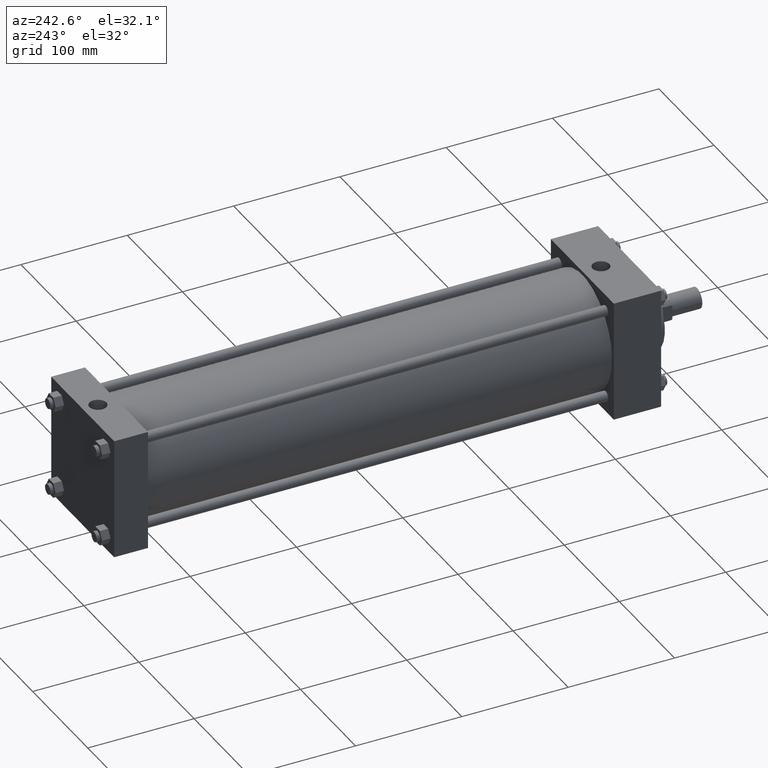
[diagram: clean part render]
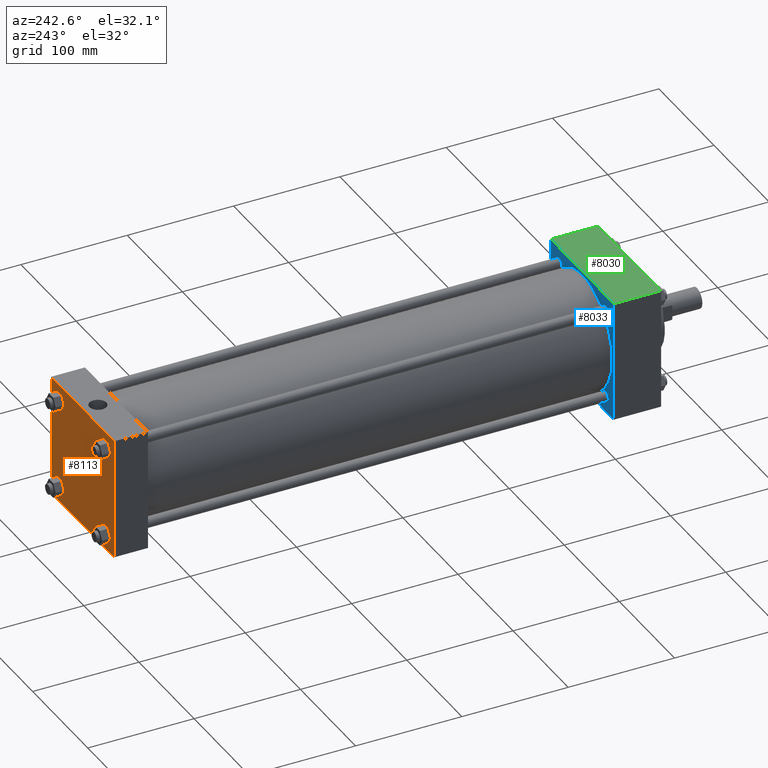
[diagram: same view with three faces highlighted in distinct colors, each labeled with its STEP entity id]
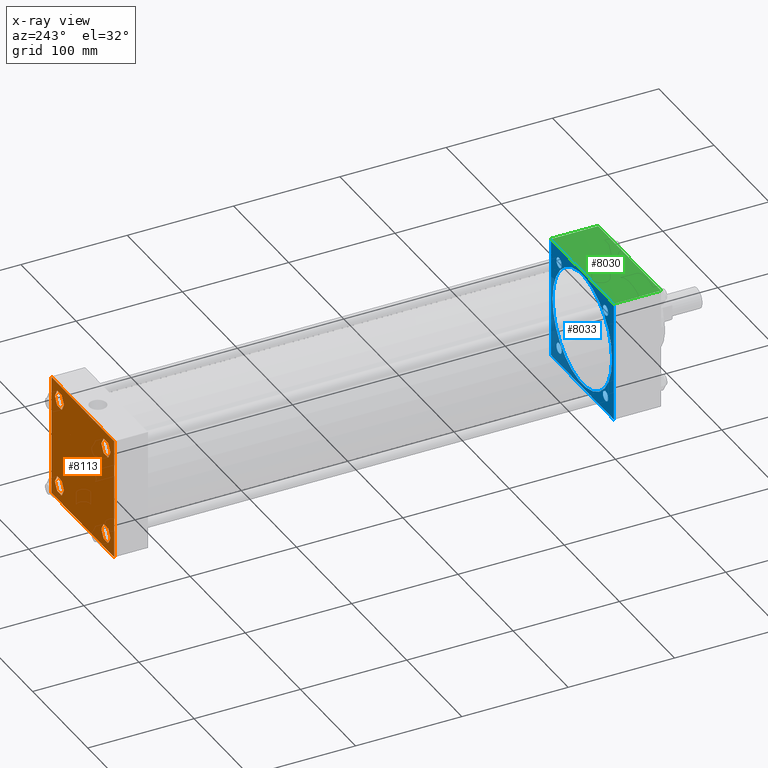
[diagram: x-ray of the same camera — body ghosted, the three highlighted faces saturated]
A machine part, auxiliary view with three faces highlighted in distinct colors.
The next image is the same camera in x-ray (body ghosted, the three faces saturated) — at least one of them is partly hidden behind the body in this view.
Their STEP definitions:

[orange] entity #8113 — the highlighted planar face has unit normal (0, -1, 0).
#4304=FACE_OUTER_BOUND('',#4309,.T.);
#4305=FACE_BOUND('',#4310,.T.);
#4306=FACE_BOUND('',#4311,.T.);
#4307=FACE_BOUND('',#4312,.T.);
#4308=FACE_BOUND('',#4313,.T.);
#4309=EDGE_LOOP('',(#4314,#4315,#4316,#4317,#4318,#4319));
#4310=EDGE_LOOP('',(#4362,#4363,#4364,#4365,#4366,#4367));
#4311=EDGE_LOOP('',(#4410,#4411,#4412,#4413,#4414,#4415));
#4312=EDGE_LOOP('',(#4458,#4459,#4460,#4461));
#4313=EDGE_LOOP('',(#4490,#4491,#4492,#4493,#4494,#4495));
#4314=ORIENTED_EDGE('',*,*,#4320,.F.);
#4315=ORIENTED_EDGE('',*,*,#4329,.F.);
#4316=ORIENTED_EDGE('',*,*,#4336,.F.);
#4317=ORIENTED_EDGE('',*,*,#4343,.F.);
#4318=ORIENTED_EDGE('',*,*,#4350,.F.);
#4319=ORIENTED_EDGE('',*,*,#4357,.F.);
#4320=EDGE_CURVE('',#4325,#4326,#4321,.T.);
#4321=LINE('',#4322,#4323);
#4322=CARTESIAN_POINT('',(3.803954875E+001,5.492750000E+002,4.930774453E+001));
#4323=VECTOR('',#4324,1.0E+000);
#4324=DIRECTION('',(4.9999999836129E-001,0.0E+000,8.66025404730548E-001));
#4325=VERTEX_POINT('',#4327);
#4326=VERTEX_POINT('',#4328);
#4327=CARTESIAN_POINT('',(3.391511014E+001,5.492750000E+002,4.216400000E+001));
#4328=CARTESIAN_POINT('',(3.803954875E+001,5.492750000E+002,4.930774453E+001));
#4329=EDGE_CURVE('',#4334,#4325,#4330,.T.);
#4330=LINE('',#4331,#4332);
#4331=CARTESIAN_POINT('',(3.803954875E+001,5.492750000E+002,3.502025547E+001));
#4332=VECTOR('',#4333,1.0E+000);
#4333=DIRECTION('',(-4.99999998361291E-001,0.0E+000,
   8.66025404730548E-001));
#4334=VERTEX_POINT('',#4335);
#4335=CARTESIAN_POINT('',(3.803954875E+001,5.492750000E+002,3.502025547E+001));
#4336=EDGE_CURVE('',#4341,#4334,#4337,.T.);
#4337=LINE('',#4338,#4339);
#4338=CARTESIAN_POINT('',(3.803954875E+001,5.492750000E+002,3.502025547E+001));
#4339=VECTOR('',#4340,1.0E+000);
#4340=DIRECTION('',(-1.0E+000,0.0E+000,0.0E+000));
#4341=VERTEX_POINT('',#4342);
#4342=CARTESIAN_POINT('',(4.628845125E+001,5.492750000E+002,3.502025547E+001));
#4343=EDGE_CURVE('',#4348,#4341,#4344,.T.);
#4344=LINE('',#4345,#4346);
#4345=CARTESIAN_POINT('',(5.041288986E+001,5.492750000E+002,4.216400000E+001));
#4346=VECTOR('',#4347,1.0E+000);
#4347=DIRECTION('',(-4.9999999836129E-001,0.0E+000,
   -8.66025404730549E-001));
#4348=VERTEX_POINT('',#4349);
#4349=CARTESIAN_POINT('',(5.041288986E+001,5.492750000E+002,4.216400000E+001));
#4350=EDGE_CURVE('',#4355,#4348,#4351,.T.);
#4351=LINE('',#4352,#4353);
#4352=CARTESIAN_POINT('',(5.041288986E+001,5.492750000E+002,4.216400000E+001));
#4353=VECTOR('',#4354,1.0E+000);
#4354=DIRECTION('',(4.9999999836129E-001,0.0E+000,-8.66025404730548E-001));
#4355=VERTEX_POINT('',#4356);
#4356=CARTESIAN_POINT('',(4.628845125E+001,5.492750000E+002,4.930774453E+001));
#4357=EDGE_CURVE('',#4326,#4355,#4358,.T.);
#4358=LINE('',#4359,#4360);
#4359=CARTESIAN_POINT('',(3.803954875E+001,5.492750000E+002,4.930774453E+001));
#4360=VECTOR('',#4361,1.0E+000);
#4361=DIRECTION('',(1.0E+000,0.0E+000,0.0E+000));
#4362=ORIENTED_EDGE('',*,*,#4368,.F.);
#4363=ORIENTED_EDGE('',*,*,#4377,.F.);
#4364=ORIENTED_EDGE('',*,*,#4384,.F.);
#4365=ORIENTED_EDGE('',*,*,#4391,.F.);
#4366=ORIENTED_EDGE('',*,*,#4398,.F.);
#4367=ORIENTED_EDGE('',*,*,#4405,.F.);
#4368=EDGE_CURVE('',#4373,#4374,#4369,.T.);
#4369=LINE('',#4370,#4371);
#4370=CARTESIAN_POINT('',(-4.628845125E+001,5.492750000E+002,4.930774453E+001));
#4371=VECTOR('',#4372,1.0E+000);
#4372=DIRECTION('',(4.9999999836129E-001,0.0E+000,8.66025404730548E-001));
#4373=VERTEX_POINT('',#4375);
#4374=VERTEX_POINT('',#4376);
#4375=CARTESIAN_POINT('',(-5.041288986E+001,5.492750000E+002,4.216400000E+001));
#4376=CARTESIAN_POINT('',(-4.628845125E+001,5.492750000E+002,4.930774453E+001));
#4377=EDGE_CURVE('',#4382,#4373,#4378,.T.);
#4378=LINE('',#4379,#4380);
#4379=CARTESIAN_POINT('',(-4.628845125E+001,5.492750000E+002,3.502025547E+001));
#4380=VECTOR('',#4381,1.0E+000);
#4381=DIRECTION('',(-4.99999998361291E-001,0.0E+000,
   8.66025404730548E-001));
#4382=VERTEX_POINT('',#4383);
#4383=CARTESIAN_POINT('',(-4.628845125E+001,5.492750000E+002,3.502025547E+001));
#4384=EDGE_CURVE('',#4389,#4382,#4385,.T.);
#4385=LINE('',#4386,#4387);
#4386=CARTESIAN_POINT('',(-4.628845125E+001,5.492750000E+002,3.502025547E+001));
#4387=VECTOR('',#4388,1.0E+000);
#4388=DIRECTION('',(-1.0E+000,0.0E+000,0.0E+000));
#4389=VERTEX_POINT('',#4390);
#4390=CARTESIAN_POINT('',(-3.803954875E+001,5.492750000E+002,3.502025547E+001));
#4391=EDGE_CURVE('',#4396,#4389,#4392,.T.);
#4392=LINE('',#4393,#4394);
#4393=CARTESIAN_POINT('',(-3.391511014E+001,5.492750000E+002,4.216400000E+001));
#4394=VECTOR('',#4395,1.0E+000);
#4395=DIRECTION('',(-4.9999999836129E-001,0.0E+000,
   -8.66025404730549E-001));
#4396=VERTEX_POINT('',#4397);
#4397=CARTESIAN_POINT('',(-3.391511014E+001,5.492750000E+002,4.216400000E+001));
#4398=EDGE_CURVE('',#4403,#4396,#4399,.T.);
#4399=LINE('',#4400,#4401);
#4400=CARTESIAN_POINT('',(-3.391511014E+001,5.492750000E+002,4.216400000E+001));
#4401=VECTOR('',#4402,1.0E+000);
#4402=DIRECTION('',(4.9999999836129E-001,0.0E+000,-8.66025404730548E-001));
#4403=VERTEX_POINT('',#4404);
#4404=CARTESIAN_POINT('',(-3.803954875E+001,5.492750000E+002,4.930774453E+001));
#4405=EDGE_CURVE('',#4374,#4403,#4406,.T.);
#4406=LINE('',#4407,#4408);
#4407=CARTESIAN_POINT('',(-4.628845125E+001,5.492750000E+002,4.930774453E+001));
#4408=VECTOR('',#4409,1.0E+000);
#4409=DIRECTION('',(1.0E+000,0.0E+000,0.0E+000));
#4410=ORIENTED_EDGE('',*,*,#4416,.F.);
#4411=ORIENTED_EDGE('',*,*,#4425,.F.);
#4412=ORIENTED_EDGE('',*,*,#4432,.F.);
#4413=ORIENTED_EDGE('',*,*,#4439,.F.);
#4414=ORIENTED_EDGE('',*,*,#4446,.F.);
#4415=ORIENTED_EDGE('',*,*,#4453,.F.);
#4416=EDGE_CURVE('',#4421,#4422,#4417,.T.);
#4417=LINE('',#4418,#4419);
#4418=CARTESIAN_POINT('',(-4.628845125E+001,5.492750000E+002,-3.502025547E+001));
#4419=VECTOR('',#4420,1.0E+000);
#4420=DIRECTION('',(4.9999999836129E-001,0.0E+000,8.66025404730549E-001));
#4421=VERTEX_POINT('',#4423);
#4422=VERTEX_POINT('',#4424);
#4423=CARTESIAN_POINT('',(-5.041288986E+001,5.492750000E+002,-4.216400000E+001));
#4424=CARTESIAN_POINT('',(-4.628845125E+001,5.492750000E+002,-3.502025547E+001));
#4425=EDGE_CURVE('',#4430,#4421,#4426,.T.);
#4426=LINE('',#4427,#4428);
#4427=CARTESIAN_POINT('',(-4.628845125E+001,5.492750000E+002,-4.930774453E+001));
#4428=VECTOR('',#4429,1.0E+000);
#4429=DIRECTION('',(-4.99999998361291E-001,0.0E+000,
   8.66025404730548E-001));
#4430=VERTEX_POINT('',#4431);
#4431=CARTESIAN_POINT('',(-4.628845125E+001,5.492750000E+002,-4.930774453E+001));
#4432=EDGE_CURVE('',#4437,#4430,#4433,.T.);
#4433=LINE('',#4434,#4435);
#4434=CARTESIAN_POINT('',(-4.628845125E+001,5.492750000E+002,-4.930774453E+001));
#4435=VECTOR('',#4436,1.0E+000);
#4436=DIRECTION('',(-1.0E+000,0.0E+000,0.0E+000));
#4437=VERTEX_POINT('',#4438);
#4438=CARTESIAN_POINT('',(-3.803954875E+001,5.492750000E+002,-4.930774453E+001));
#4439=EDGE_CURVE('',#4444,#4437,#4440,.T.);
#4440=LINE('',#4441,#4442);
#4441=CARTESIAN_POINT('',(-3.391511014E+001,5.492750000E+002,-4.216400000E+001));
#4442=VECTOR('',#4443,1.0E+000);
#4443=DIRECTION('',(-4.99999998361289E-001,0.0E+000,
   -8.66025404730549E-001));
#4444=VERTEX_POINT('',#4445);
#4445=CARTESIAN_POINT('',(-3.391511014E+001,5.492750000E+002,-4.216400000E+001));
#4446=EDGE_CURVE('',#4451,#4444,#4447,.T.);
#4447=LINE('',#4448,#4449);
#4448=CARTESIAN_POINT('',(-3.391511014E+001,5.492750000E+002,-4.216400000E+001));
#4449=VECTOR('',#4450,1.0E+000);
#4450=DIRECTION('',(4.9999999836129E-001,0.0E+000,-8.66025404730548E-001));
#4451=VERTEX_POINT('',#4452);
#4452=CARTESIAN_POINT('',(-3.803954875E+001,5.492750000E+002,-3.502025547E+001));
#4453=EDGE_CURVE('',#4422,#4451,#4454,.T.);
#4454=LINE('',#4455,#4456);
#4455=CARTESIAN_POINT('',(-4.628845125E+001,5.492750000E+002,-3.502025547E+001));
#4456=VECTOR('',#4457,1.0E+000);
#4457=DIRECTION('',(1.0E+000,0.0E+000,0.0E+000));
#4458=ORIENTED_EDGE('',*,*,#4462,.F.);
#4459=ORIENTED_EDGE('',*,*,#4471,.T.);
#4460=ORIENTED_EDGE('',*,*,#4478,.F.);
#4461=ORIENTED_EDGE('',*,*,#4485,.F.);
#4462=EDGE_CURVE('',#4467,#4468,#4463,.T.);
#4463=LINE('',#4464,#4465);
#4464=CARTESIAN_POINT('',(5.715000000E+001,5.492750000E+002,-5.715000000E+001));
#4465=VECTOR('',#4466,1.0E+000);
#4466=DIRECTION('',(0.0E+000,0.0E+000,1.0E+000));
#4467=VERTEX_POINT('',#4469);
#4468=VERTEX_POINT('',#4470);
#4469=CARTESIAN_POINT('',(5.715000000E+001,5.492750000E+002,-5.715000000E+001));
#4470=CARTESIAN_POINT('',(5.715000000E+001,5.492750000E+002,5.715000000E+001));
#4471=EDGE_CURVE('',#4467,#4476,#4472,.T.);
#4472=LINE('',#4473,#4474);
#4473=CARTESIAN_POINT('',(5.715000000E+001,5.492750000E+002,-5.715000000E+001));
#4474=VECTOR('',#4475,1.0E+000);
#4475=DIRECTION('',(-1.0E+000,0.0E+000,0.0E+000));
#4476=VERTEX_POINT('',#4477);
#4477=CARTESIAN_POINT('',(-5.715000000E+001,5.492750000E+002,-5.715000000E+001));
#4478=EDGE_CURVE('',#4483,#4476,#4479,.T.);
#4479=LINE('',#4480,#4481);
#4480=CARTESIAN_POINT('',(-5.715000000E+001,5.492750000E+002,5.715000000E+001));
#4481=VECTOR('',#4482,1.0E+000);
#4482=DIRECTION('',(0.0E+000,0.0E+000,-1.0E+000));
#4483=VERTEX_POINT('',#4484);
#4484=CARTESIAN_POINT('',(-5.715000000E+001,5.492750000E+002,5.715000000E+001));
#4485=EDGE_CURVE('',#4468,#4483,#4486,.T.);
#4486=LINE('',#4487,#4488);
#4487=CARTESIAN_POINT('',(5.715000000E+001,5.492750000E+002,5.715000000E+001));
#4488=VECTOR('',#4489,1.0E+000);
#4489=DIRECTION('',(-1.0E+000,0.0E+000,0.0E+000));
#4490=ORIENTED_EDGE('',*,*,#4496,.F.);
#4491=ORIENTED_EDGE('',*,*,#4505,.F.);
#4492=ORIENTED_EDGE('',*,*,#4512,.F.);
#4493=ORIENTED_EDGE('',*,*,#4519,.F.);
#4494=ORIENTED_EDGE('',*,*,#4526,.F.);
#4495=ORIENTED_EDGE('',*,*,#4533,.F.);
#4496=EDGE_CURVE('',#4501,#4502,#4497,.T.);
#4497=LINE('',#4498,#4499);
#4498=CARTESIAN_POINT('',(4.628845125E+001,5.492750000E+002,-4.930774453E+001));
#4499=VECTOR('',#4500,1.0E+000);
#4500=DIRECTION('',(-4.9999999836129E-001,0.0E+000,
   -8.66025404730549E-001));
#4501=VERTEX_POINT('',#4503);
#4502=VERTEX_POINT('',#4504);
#4503=CARTESIAN_POINT('',(5.041288986E+001,5.492750000E+002,-4.216400000E+001));
#4504=CARTESIAN_POINT('',(4.628845125E+001,5.492750000E+002,-4.930774453E+001));
#4505=EDGE_CURVE('',#4510,#4501,#4506,.T.);
#4506=LINE('',#4507,#4508);
#4507=CARTESIAN_POINT('',(4.628845125E+001,5.492750000E+002,-3.502025547E+001));
#4508=VECTOR('',#4509,1.0E+000);
#4509=DIRECTION('',(4.99999998361291E-001,0.0E+000,
   -8.66025404730548E-001));
#4510=VERTEX_POINT('',#4511);
#4511=CARTESIAN_POINT('',(4.628845125E+001,5.492750000E+002,-3.502025547E+001));
#4512=EDGE_CURVE('',#4517,#4510,#4513,.T.);
#4513=LINE('',#4514,#4515);
#4514=CARTESIAN_POINT('',(4.628845125E+001,5.492750000E+002,-3.502025547E+001));
#4515=VECTOR('',#4516,1.0E+000);
#4516=DIRECTION('',(1.0E+000,0.0E+000,0.0E+000));
#4517=VERTEX_POINT('',#4518);
#4518=CARTESIAN_POINT('',(3.803954875E+001,5.492750000E+002,-3.502025547E+001));
#4519=EDGE_CURVE('',#4524,#4517,#4520,.T.);
#4520=LINE('',#4521,#4522);
#4521=CARTESIAN_POINT('',(3.391511014E+001,5.492750000E+002,-4.216400000E+001));
#4522=VECTOR('',#4523,1.0E+000);
#4523=DIRECTION('',(4.99999998361289E-001,0.0E+000,8.66025404730549E-001));
#4524=VERTEX_POINT('',#4525);
#4525=CARTESIAN_POINT('',(3.391511014E+001,5.492750000E+002,-4.216400000E+001));
#4526=EDGE_CURVE('',#4531,#4524,#4527,.T.);
#4527=LINE('',#4528,#4529);
#4528=CARTESIAN_POINT('',(3.391511014E+001,5.492750000E+002,-4.216400000E+001));
#4529=VECTOR('',#4530,1.0E+000);
#4530=DIRECTION('',(-4.9999999836129E-001,0.0E+000,8.66025404730548E-001));
#4531=VERTEX_POINT('',#4532);
#4532=CARTESIAN_POINT('',(3.803954875E+001,5.492750000E+002,-4.930774453E+001));
#4533=EDGE_CURVE('',#4502,#4531,#4534,.T.);
#4534=LINE('',#4535,#4536);
#4535=CARTESIAN_POINT('',(4.628845125E+001,5.492750000E+002,-4.930774453E+001));
#4536=VECTOR('',#4537,1.0E+000);
#4537=DIRECTION('',(-1.0E+000,0.0E+000,0.0E+000));
#4538=PLANE('',#4539);
#4539=AXIS2_PLACEMENT_3D('',#4540,#4541,#4542);
#4540=CARTESIAN_POINT('',(5.715000000E+001,5.492750000E+002,-5.715000000E+001));
#4541=DIRECTION('',(0.0E+000,-1.0E+000,0.0E+000));
#4542=DIRECTION('',(0.0E+000,0.0E+000,-1.0E+000));
#8113=ADVANCED_FACE('',(#4304,#4305,#4306,#4307,#4308),#4538,.F.);

[blue] entity #8033 — the highlighted planar face has unit normal (0, -1, 0).
#490=EDGE_CURVE('',#496,#496,#491,.T.);
#491=CIRCLE('',#492,4.762500000E+000);
#492=AXIS2_PLACEMENT_3D('',#493,#494,#495);
#493=CARTESIAN_POINT('',(4.216400000E+001,7.937500000E+001,-4.216400000E+001));
#494=DIRECTION('',(0.0E+000,1.0E+000,0.0E+000));
#495=DIRECTION('',(-1.0E+000,0.0E+000,0.0E+000));
#496=VERTEX_POINT('',#497);
#497=CARTESIAN_POINT('',(4.692650000E+001,7.937500000E+001,-4.216400000E+001));
#517=EDGE_CURVE('',#523,#523,#518,.T.);
#518=CIRCLE('',#519,4.762500000E+000);
#519=AXIS2_PLACEMENT_3D('',#520,#521,#522);
#520=CARTESIAN_POINT('',(-4.216400000E+001,7.937500000E+001,-4.216400000E+001));
#521=DIRECTION('',(0.0E+000,1.0E+000,0.0E+000));
#522=DIRECTION('',(-1.0E+000,0.0E+000,0.0E+000));
#523=VERTEX_POINT('',#524);
#524=CARTESIAN_POINT('',(-3.740150000E+001,7.937500000E+001,-4.216400000E+001));
#544=EDGE_CURVE('',#550,#550,#545,.T.);
#545=CIRCLE('',#546,4.762500000E+000);
#546=AXIS2_PLACEMENT_3D('',#547,#548,#549);
#547=CARTESIAN_POINT('',(-4.216400000E+001,7.937500000E+001,4.216400000E+001));
#548=DIRECTION('',(0.0E+000,1.0E+000,0.0E+000));
#549=DIRECTION('',(-1.0E+000,0.0E+000,0.0E+000));
#550=VERTEX_POINT('',#551);
#551=CARTESIAN_POINT('',(-3.740150000E+001,7.937500000E+001,4.216400000E+001));
#571=EDGE_CURVE('',#577,#577,#572,.T.);
#572=CIRCLE('',#573,4.762500000E+000);
#573=AXIS2_PLACEMENT_3D('',#574,#575,#576);
#574=CARTESIAN_POINT('',(4.216400000E+001,7.937500000E+001,4.216400000E+001));
#575=DIRECTION('',(0.0E+000,1.0E+000,0.0E+000));
#576=DIRECTION('',(-1.0E+000,0.0E+000,0.0E+000));
#577=VERTEX_POINT('',#578);
#578=CARTESIAN_POINT('',(3.740150000E+001,7.937500000E+001,4.216400000E+001));
#977=EDGE_CURVE('',#983,#983,#978,.T.);
#978=CIRCLE('',#979,5.397500000E+001);
#979=AXIS2_PLACEMENT_3D('',#980,#981,#982);
#980=CARTESIAN_POINT('',(0.000000000E+000,7.937500000E+001,0.000000000E+000));
#981=DIRECTION('',(0.0E+000,1.0E+000,0.0E+000));
#982=DIRECTION('',(-1.0E+000,0.0E+000,0.0E+000));
#983=VERTEX_POINT('',#984);
#984=CARTESIAN_POINT('',(5.397500000E+001,7.937500000E+001,0.000000000E+000));
#1960=VERTEX_POINT('',#1961);
#1961=CARTESIAN_POINT('',(-5.715000000E+001,7.937500000E+001,5.715000000E+001));
#1962=EDGE_CURVE('',#1960,#1967,#1963,.T.);
#1963=LINE('',#1964,#1965);
#1964=CARTESIAN_POINT('',(-5.715000000E+001,7.937500000E+001,5.715000000E+001));
#1965=VECTOR('',#1966,1.0E+000);
#1966=DIRECTION('',(0.0E+000,0.0E+000,-1.0E+000));
#1967=VERTEX_POINT('',#1968);
#1968=CARTESIAN_POINT('',(-5.715000000E+001,7.937500000E+001,-5.715000000E+001));
#2000=VERTEX_POINT('',#2001);
#2001=CARTESIAN_POINT('',(5.715000000E+001,7.937500000E+001,5.715000000E+001));
#2002=EDGE_CURVE('',#2000,#1960,#2003,.T.);
#2003=LINE('',#2004,#2005);
#2004=CARTESIAN_POINT('',(5.715000000E+001,7.937500000E+001,5.715000000E+001));
#2005=VECTOR('',#2006,1.0E+000);
#2006=DIRECTION('',(-1.0E+000,0.0E+000,0.0E+000));
#2033=VERTEX_POINT('',#2034);
#2034=CARTESIAN_POINT('',(5.715000000E+001,7.937500000E+001,-5.715000000E+001));
#2035=EDGE_CURVE('',#2033,#2000,#2036,.T.);
#2036=LINE('',#2037,#2038);
#2037=CARTESIAN_POINT('',(5.715000000E+001,7.937500000E+001,-5.715000000E+001));
#2038=VECTOR('',#2039,1.0E+000);
#2039=DIRECTION('',(0.0E+000,0.0E+000,1.0E+000));
#2062=EDGE_CURVE('',#1967,#2033,#2063,.T.);
#2063=LINE('',#2064,#2065);
#2064=CARTESIAN_POINT('',(-5.715000000E+001,7.937500000E+001,-5.715000000E+001));
#2065=VECTOR('',#2066,1.0E+000);
#2066=DIRECTION('',(1.0E+000,0.0E+000,0.0E+000));
#2072=FACE_OUTER_BOUND('',#2078,.T.);
#2073=FACE_BOUND('',#2079,.T.);
#2074=FACE_BOUND('',#2080,.T.);
#2075=FACE_BOUND('',#2081,.T.);
#2076=FACE_BOUND('',#2082,.T.);
#2077=FACE_BOUND('',#2083,.T.);
#2078=EDGE_LOOP('',(#2084));
#2079=EDGE_LOOP('',(#2085));
#2080=EDGE_LOOP('',(#2086,#2087,#2088,#2089));
#2081=EDGE_LOOP('',(#2090));
#2082=EDGE_LOOP('',(#2091));
#2083=EDGE_LOOP('',(#2092));
#2084=ORIENTED_EDGE('',*,*,#571,.F.);
#2085=ORIENTED_EDGE('',*,*,#517,.F.);
#2086=ORIENTED_EDGE('',*,*,#2062,.F.);
#2087=ORIENTED_EDGE('',*,*,#1962,.F.);
#2088=ORIENTED_EDGE('',*,*,#2002,.F.);
#2089=ORIENTED_EDGE('',*,*,#2035,.F.);
#2090=ORIENTED_EDGE('',*,*,#490,.F.);
#2091=ORIENTED_EDGE('',*,*,#544,.F.);
#2092=ORIENTED_EDGE('',*,*,#977,.F.);
#2093=PLANE('',#2094);
#2094=AXIS2_PLACEMENT_3D('',#2095,#2096,#2097);
#2095=CARTESIAN_POINT('',(5.715000000E+001,7.937500000E+001,-5.715000000E+001));
#2096=DIRECTION('',(0.0E+000,-1.0E+000,0.0E+000));
#2097=DIRECTION('',(0.0E+000,0.0E+000,-1.0E+000));
#8033=ADVANCED_FACE('',(#2072,#2073,#2074,#2075,#2076,#2077),#2093,.F.);

[green] entity #8030 — the highlighted planar face has unit normal (0, 0, 1).
#1846=EDGE_CURVE('',#1852,#1852,#1847,.T.);
#1847=CIRCLE('',#1848,7.963027000E+000);
#1848=AXIS2_PLACEMENT_3D('',#1849,#1850,#1851);
#1849=CARTESIAN_POINT('',(0.000000000E+000,6.191250000E+001,5.715000000E+001));
#1850=DIRECTION('',(0.0E+000,0.0E+000,-1.0E+000));
#1851=DIRECTION('',(0.0E+000,-1.0E+000,0.0E+000));
#1852=VERTEX_POINT('',#1853);
#1853=CARTESIAN_POINT('',(0.000000000E+000,5.394947300E+001,5.715000000E+001));
#1951=VERTEX_POINT('',#1953);
#1953=CARTESIAN_POINT('',(-5.715000000E+001,3.492500000E+001,5.715000000E+001));
#1955=EDGE_CURVE('',#1960,#1951,#1956,.T.);
#1956=LINE('',#1957,#1958);
#1957=CARTESIAN_POINT('',(-5.715000000E+001,7.937500000E+001,5.715000000E+001));
#1958=VECTOR('',#1959,1.0E+000);
#1959=DIRECTION('',(0.0E+000,-1.0E+000,0.0E+000));
#1960=VERTEX_POINT('',#1961);
#1961=CARTESIAN_POINT('',(-5.715000000E+001,7.937500000E+001,5.715000000E+001));
#1979=FACE_OUTER_BOUND('',#1981,.T.);
#1980=FACE_BOUND('',#1982,.T.);
#1981=EDGE_LOOP('',(#1983));
#1982=EDGE_LOOP('',(#1984,#1985,#1986,#1987));
#1983=ORIENTED_EDGE('',*,*,#1846,.T.);
#1984=ORIENTED_EDGE('',*,*,#1988,.F.);
#1985=ORIENTED_EDGE('',*,*,#1995,.F.);
#1986=ORIENTED_EDGE('',*,*,#2002,.T.);
#1987=ORIENTED_EDGE('',*,*,#1955,.T.);
#1988=EDGE_CURVE('',#1993,#1951,#1989,.T.);
#1989=LINE('',#1990,#1991);
#1990=CARTESIAN_POINT('',(5.715000000E+001,3.492500000E+001,5.715000000E+001));
#1991=VECTOR('',#1992,1.0E+000);
#1992=DIRECTION('',(-1.0E+000,0.0E+000,0.0E+000));
#1993=VERTEX_POINT('',#1994);
#1994=CARTESIAN_POINT('',(5.715000000E+001,3.492500000E+001,5.715000000E+001));
#1995=EDGE_CURVE('',#2000,#1993,#1996,.T.);
#1996=LINE('',#1997,#1998);
#1997=CARTESIAN_POINT('',(5.715000000E+001,7.937500000E+001,5.715000000E+001));
#1998=VECTOR('',#1999,1.0E+000);
#1999=DIRECTION('',(0.0E+000,-1.0E+000,0.0E+000));
#2000=VERTEX_POINT('',#2001);
#2001=CARTESIAN_POINT('',(5.715000000E+001,7.937500000E+001,5.715000000E+001));
#2002=EDGE_CURVE('',#2000,#1960,#2003,.T.);
#2003=LINE('',#2004,#2005);
#2004=CARTESIAN_POINT('',(5.715000000E+001,7.937500000E+001,5.715000000E+001));
#2005=VECTOR('',#2006,1.0E+000);
#2006=DIRECTION('',(-1.0E+000,0.0E+000,0.0E+000));
#2007=PLANE('',#2008);
#2008=AXIS2_PLACEMENT_3D('',#2009,#2010,#2011);
#2009=CARTESIAN_POINT('',(5.715000000E+001,7.937500000E+001,5.715000000E+001));
#2010=DIRECTION('',(0.0E+000,0.0E+000,1.0E+000));
#2011=DIRECTION('',(1.0E+000,0.0E+000,0.0E+000));
#8030=ADVANCED_FACE('',(#1979,#1980),#2007,.T.);